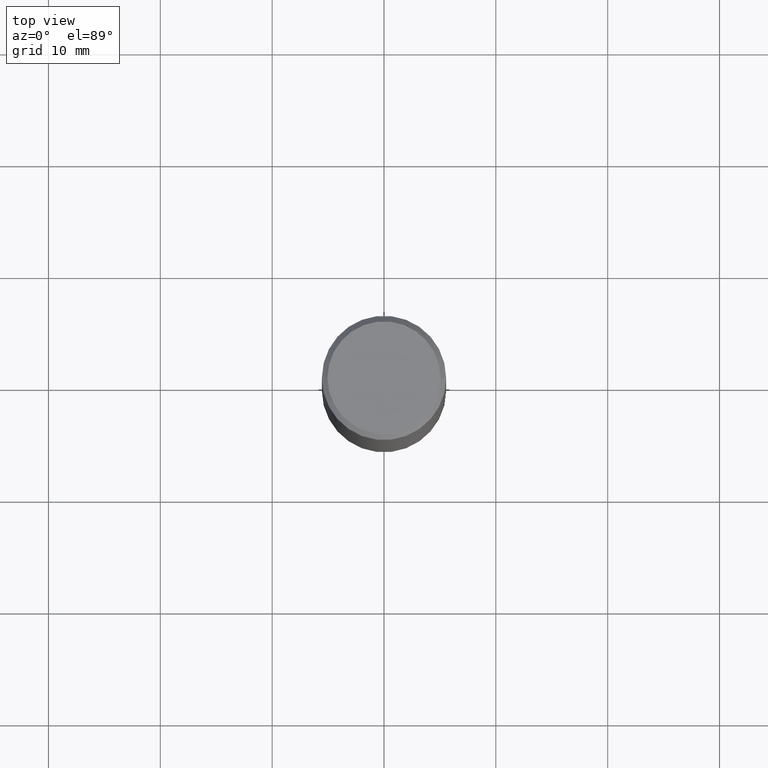
[diagram: clean part render]
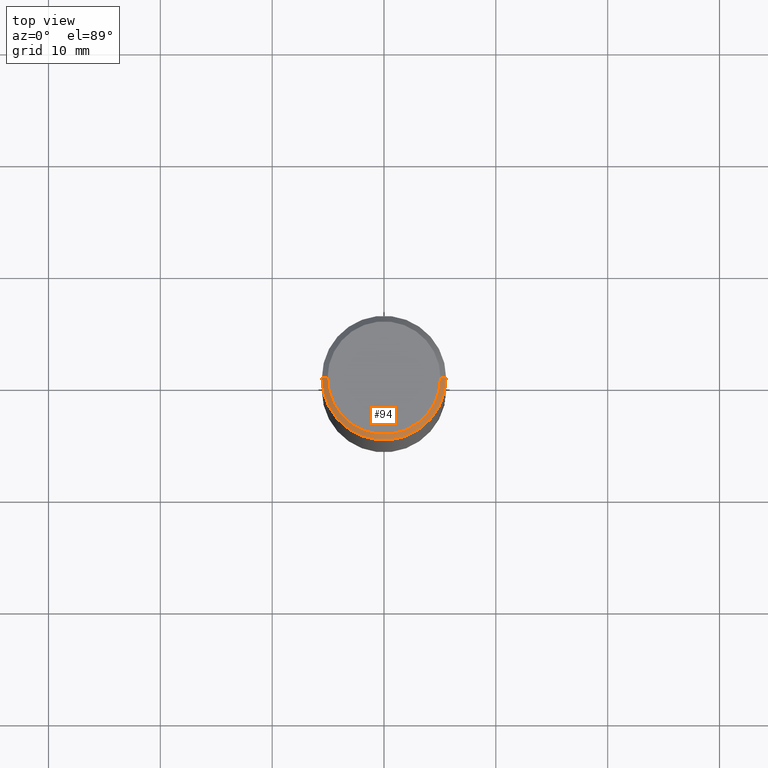
[diagram: same view with one face highlighted and labeled with its STEP entity id]
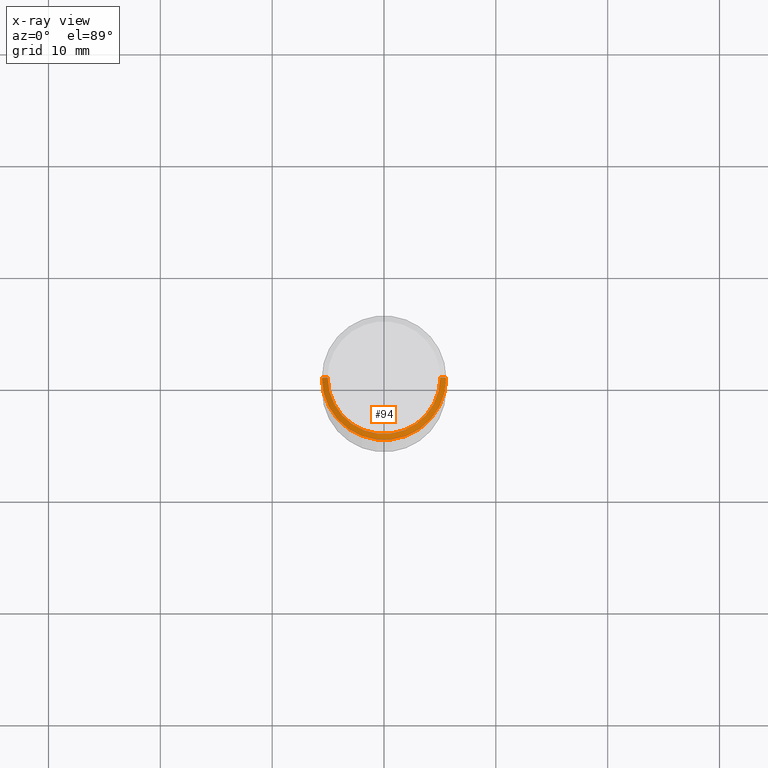
[diagram: x-ray of the same camera — body ghosted, the highlighted face saturated]
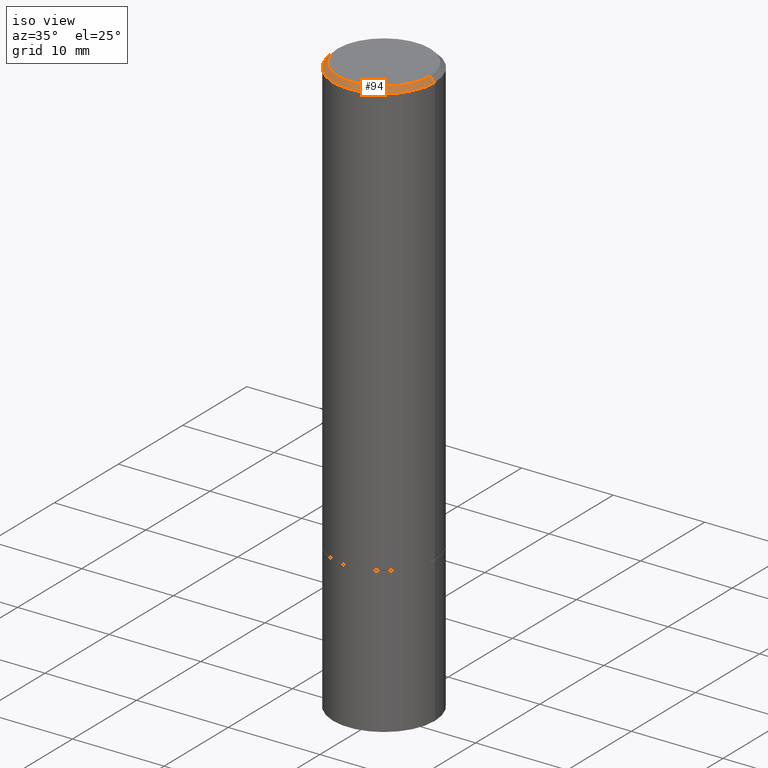
[diagram: same view with one face highlighted and labeled with its STEP entity id]
A machine part, top view. The second image highlights one B-rep face of the part: STEP entity #94.
The next image is the same camera in x-ray: the body ghosted, the highlighted face saturated — about 0% of this face is hidden behind the body in this view.
A second angle (iso view) of the same face is appended — the face is thin or edge-on in the first view.
In plain terms, the highlighted conical surface has half-angle 45 deg.
Its self-contained STEP definition (entity closure, byte-faithful):
#24 = DIRECTION ( 'NONE',  ( 2.445468806185136597E-29, -3.491481338843145583E-15, -1.000000000000000000 ) ) ;
#25 = LINE ( 'NONE', #364, #303 ) ;
#26 = DIRECTION ( 'NONE',  ( 1.000000000000000000, -6.982962677686266711E-15, 0.000000000000000000 ) ) ;
#30 = FACE_OUTER_BOUND ( 'NONE', #301, .T. ) ;
#44 = VERTEX_POINT ( 'NONE', #219 ) ;
#47 = CARTESIAN_POINT ( 'NONE',  ( 0.2187499999999997502, -1.570563563789383855E-15, -0.02000000000000006287 ) ) ;
#53 = CARTESIAN_POINT ( 'NONE',  ( 4.890937612370288923E-31, -6.982962677686312563E-17, -0.02000000000000006287 ) ) ;
#56 = EDGE_CURVE ( 'NONE', #131, #44, #268, .T. ) ;
#90 = AXIS2_PLACEMENT_3D ( 'NONE', #309, #24, #214 ) ;
#94 = ADVANCED_FACE ( 'NONE', ( #30 ), #346, .T. ) ;
#110 = CARTESIAN_POINT ( 'NONE',  ( 0.000000000000000000, 0.000000000000000000, 0.000000000000000000 ) ) ;
#113 = AXIS2_PLACEMENT_3D ( 'NONE', #110, #334, #192 ) ;
#127 = LINE ( 'NONE', #47, #143 ) ;
#129 = EDGE_CURVE ( 'NONE', #131, #206, #25, .T. ) ;
#130 = CARTESIAN_POINT ( 'NONE',  ( 0.2187499999999997502, -1.570563563789383855E-15, -0.02000000000000006287 ) ) ;
#131 = VERTEX_POINT ( 'NONE', #136 ) ;
#136 = CARTESIAN_POINT ( 'NONE',  ( -0.1987499999999997324, 1.422778645578574712E-15, -9.827974342635069682E-30 ) ) ;
#143 = VECTOR ( 'NONE', #160, 39.37007874015748143 ) ;
#153 = ORIENTED_EDGE ( 'NONE', *, *, #162, .T. ) ;
#160 = DIRECTION ( 'NONE',  ( 0.7071067811865469066, -7.319954787623254468E-15, -0.7071067811865482389 ) ) ;
#162 = EDGE_CURVE ( 'NONE', #206, #263, #262, .T. ) ;
#163 = AXIS2_PLACEMENT_3D ( 'NONE', #53, #337, #26 ) ;
#187 = ORIENTED_EDGE ( 'NONE', *, *, #129, .T. ) ;
#192 = DIRECTION ( 'NONE',  ( 1.000000000000000000, -6.982962677686266711E-15, 4.876176775795935232E-29 ) ) ;
#206 = VERTEX_POINT ( 'NONE', #251 ) ;
#207 = ORIENTED_EDGE ( 'NONE', *, *, #56, .F. ) ;
#214 = DIRECTION ( 'NONE',  ( -1.000000000000000000, 6.982962677686266711E-15, 0.000000000000000000 ) ) ;
#219 = CARTESIAN_POINT ( 'NONE',  ( 0.1987499999999997324, -1.467043770423236875E-15, 9.982525199991772484E-30 ) ) ;
#251 = CARTESIAN_POINT ( 'NONE',  ( -0.2187499999999997502, 1.457693458967005967E-15, -0.02000000000000006287 ) ) ;
#262 = CIRCLE ( 'NONE', #163, 0.2187499999999997502 ) ;
#263 = VERTEX_POINT ( 'NONE', #130 ) ;
#268 = CIRCLE ( 'NONE', #113, 0.1987499999999997324 ) ;
#285 = EDGE_CURVE ( 'NONE', #44, #263, #127, .T. ) ;
#300 = ORIENTED_EDGE ( 'NONE', *, *, #285, .F. ) ;
#301 = EDGE_LOOP ( 'NONE', ( #300, #207, #187, #153 ) ) ;
#303 = VECTOR ( 'NONE', #308, 39.37007874015748143 ) ;
#308 = DIRECTION ( 'NONE',  ( -0.7071067811865469066, 2.468850131082249961E-15, -0.7071067811865482389 ) ) ;
#309 = CARTESIAN_POINT ( 'NONE',  ( 4.890937612370288923E-31, -6.982962677686312563E-17, -0.02000000000000006287 ) ) ;
#334 = DIRECTION ( 'NONE',  ( -2.445468806185136597E-29, 3.491481338843145583E-15, 1.000000000000000000 ) ) ;
#337 = DIRECTION ( 'NONE',  ( -2.445468806185136597E-29, 3.491481338843145583E-15, 1.000000000000000000 ) ) ;
#346 = CONICAL_SURFACE ( 'NONE', #90, 0.2187499999999997502, 0.7853981633974473908 ) ;
#364 = CARTESIAN_POINT ( 'NONE',  ( -0.2187499999999997502, 1.457693458967005967E-15, -0.02000000000000006287 ) ) ;